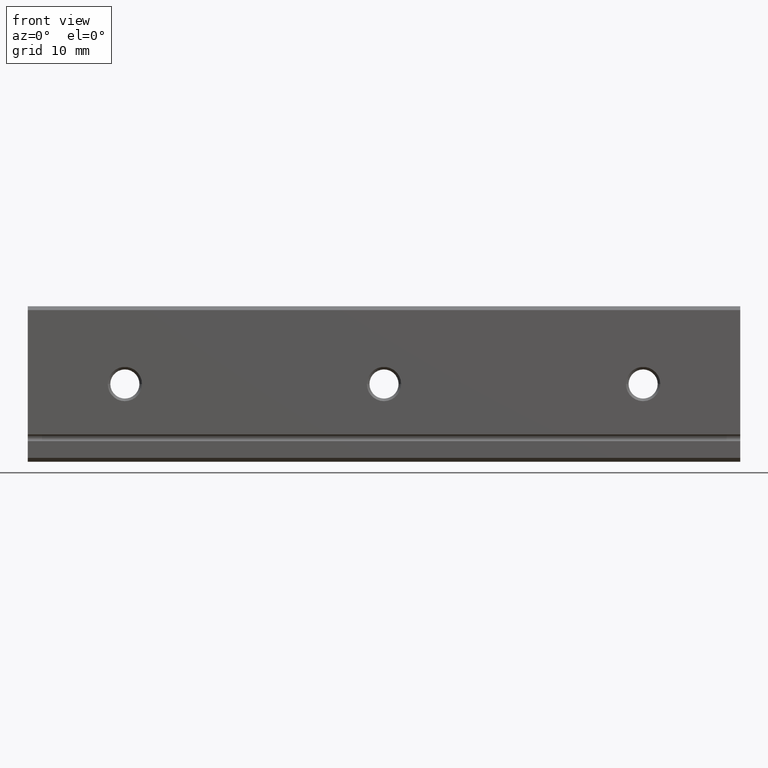
[diagram: clean part render]
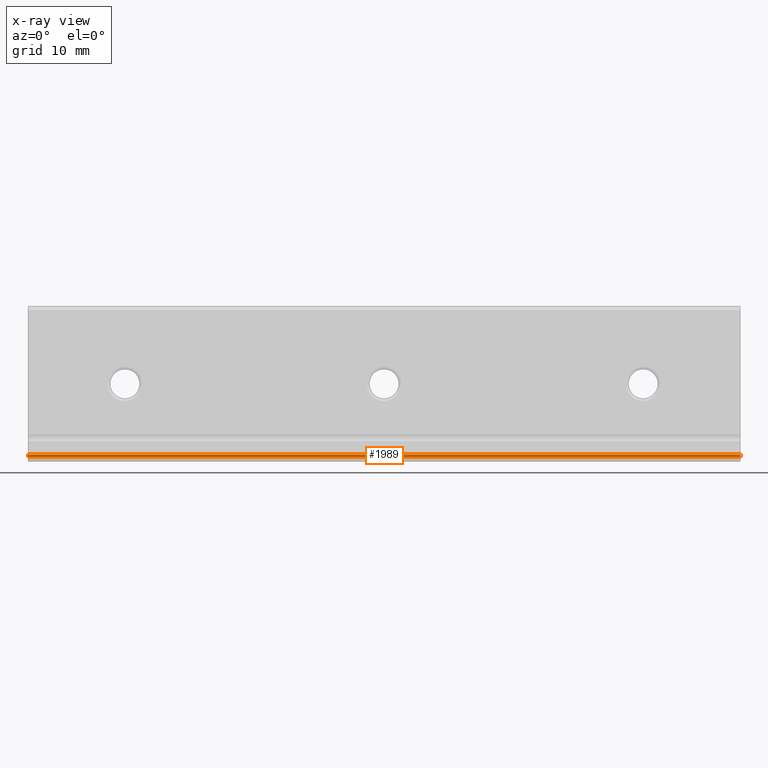
[diagram: x-ray — body ghosted, one internal face saturated and labeled with its STEP entity id]
A machine part, front view, then the same camera in x-ray: the body is ghosted and one INTERNAL B-rep face — a face not visible from any outside direction — is saturated and labeled: STEP entity #1989.
In plain terms, the highlighted planar face has unit normal (0, 1, 0).
Its self-contained STEP definition (entity closure, byte-faithful):
#200 = VERTEX_POINT ( 'NONE', #812 ) ;
#203 = EDGE_CURVE ( 'NONE', #200, #204, #870, .T. ) ;
#204 = VERTEX_POINT ( 'NONE', #866 ) ;
#316 = VERTEX_POINT ( 'NONE', #1043 ) ;
#322 = EDGE_CURVE ( 'NONE', #316, #325, #1032, .T. ) ;
#325 = VERTEX_POINT ( 'NONE', #1085 ) ;
#812 = CARTESIAN_POINT ( 'NONE',  ( -110.0000000000000000, 6.499999999999997300, -11.33256691840602700 ) ) ;
#866 = CARTESIAN_POINT ( 'NONE',  ( -110.0000000000000000, 6.499999999999997300, -10.90000000000000000 ) ) ;
#867 = DIRECTION ( 'NONE',  ( 0.0000000000000000000, 0.0000000000000000000, 1.000000000000000000 ) ) ;
#868 = VECTOR ( 'NONE', #867, 1000.000000000000000 ) ;
#869 = CARTESIAN_POINT ( 'NONE',  ( -110.0000000000000000, 6.499999999999997300, -11.33256691840602700 ) ) ;
#870 = LINE ( 'NONE', #869, #868 ) ;
#1029 = DIRECTION ( 'NONE',  ( 0.0000000000000000000, 0.0000000000000000000, 1.000000000000000000 ) ) ;
#1030 = VECTOR ( 'NONE', #1029, 1000.000000000000000 ) ;
#1031 = CARTESIAN_POINT ( 'NONE',  ( 0.0000000000000000000, 6.499999999999997300, -11.33256691840602700 ) ) ;
#1032 = LINE ( 'NONE', #1031, #1030 ) ;
#1043 = CARTESIAN_POINT ( 'NONE',  ( 0.0000000000000000000, 6.499999999999997300, -11.33256691840602700 ) ) ;
#1085 = CARTESIAN_POINT ( 'NONE',  ( 0.0000000000000000000, 6.499999999999997300, -10.90000000000000000 ) ) ;
#1596 = PLANE ( 'NONE',  #1662 ) ;
#1597 = FACE_OUTER_BOUND ( 'NONE', #1990, .T. ) ;
#1633 = LINE ( 'NONE', #1693, #1692 ) ;
#1655 = DIRECTION ( 'NONE',  ( 1.000000000000000000, 0.0000000000000000000, 0.0000000000000000000 ) ) ;
#1656 = VECTOR ( 'NONE', #1655, 1000.000000000000000 ) ;
#1657 = CARTESIAN_POINT ( 'NONE',  ( -110.0000000000000000, 6.499999999999997300, -11.33256691840602700 ) ) ;
#1658 = LINE ( 'NONE', #1657, #1656 ) ;
#1659 = DIRECTION ( 'NONE',  ( 0.0000000000000000000, 0.0000000000000000000, 1.000000000000000000 ) ) ;
#1660 = DIRECTION ( 'NONE',  ( 0.0000000000000000000, 1.000000000000000000, 0.0000000000000000000 ) ) ;
#1661 = CARTESIAN_POINT ( 'NONE',  ( -110.0000000000000000, 6.499999999999997300, -11.33256691840602700 ) ) ;
#1662 = AXIS2_PLACEMENT_3D ( 'NONE', #1661, #1660, #1659 ) ;
#1691 = DIRECTION ( 'NONE',  ( 1.000000000000000000, 0.0000000000000000000, 0.0000000000000000000 ) ) ;
#1692 = VECTOR ( 'NONE', #1691, 1000.000000000000000 ) ;
#1693 = CARTESIAN_POINT ( 'NONE',  ( -110.0000000000000000, 6.499999999999997300, -10.90000000000000000 ) ) ;
#1987 = ORIENTED_EDGE ( 'NONE', *, *, #2011, .F. ) ;
#1988 = ORIENTED_EDGE ( 'NONE', *, *, #322, .T. ) ;
#1989 = ADVANCED_FACE ( 'NONE', ( #1597 ), #1596, .F. ) ;
#1990 = EDGE_LOOP ( 'NONE', ( #1988, #1987, #2010, #2014 ) ) ;
#1995 = EDGE_CURVE ( 'NONE', #200, #316, #1658, .T. ) ;
#2010 = ORIENTED_EDGE ( 'NONE', *, *, #203, .F. ) ;
#2011 = EDGE_CURVE ( 'NONE', #204, #325, #1633, .T. ) ;
#2014 = ORIENTED_EDGE ( 'NONE', *, *, #1995, .T. ) ;